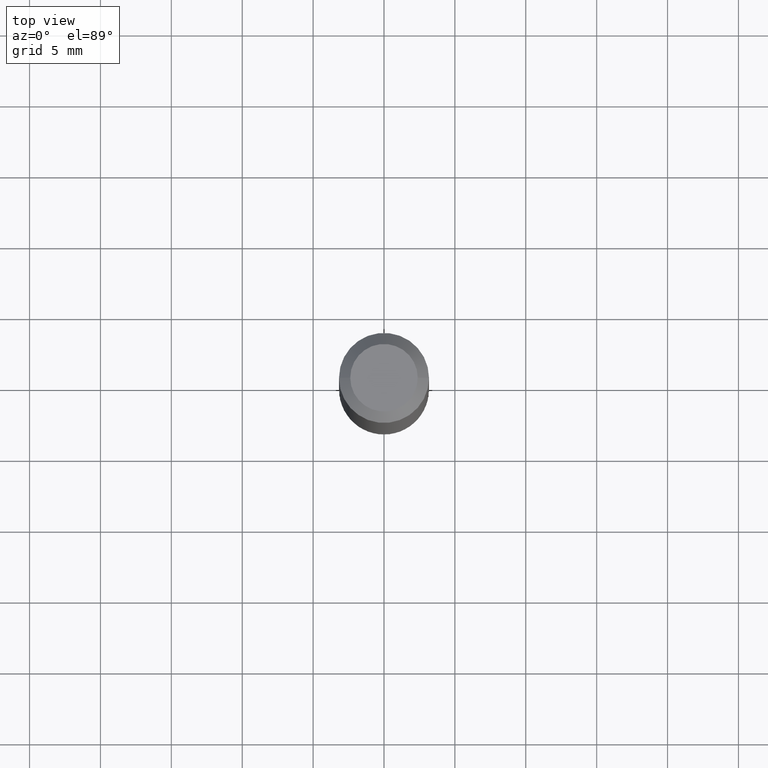
[diagram: clean part render]
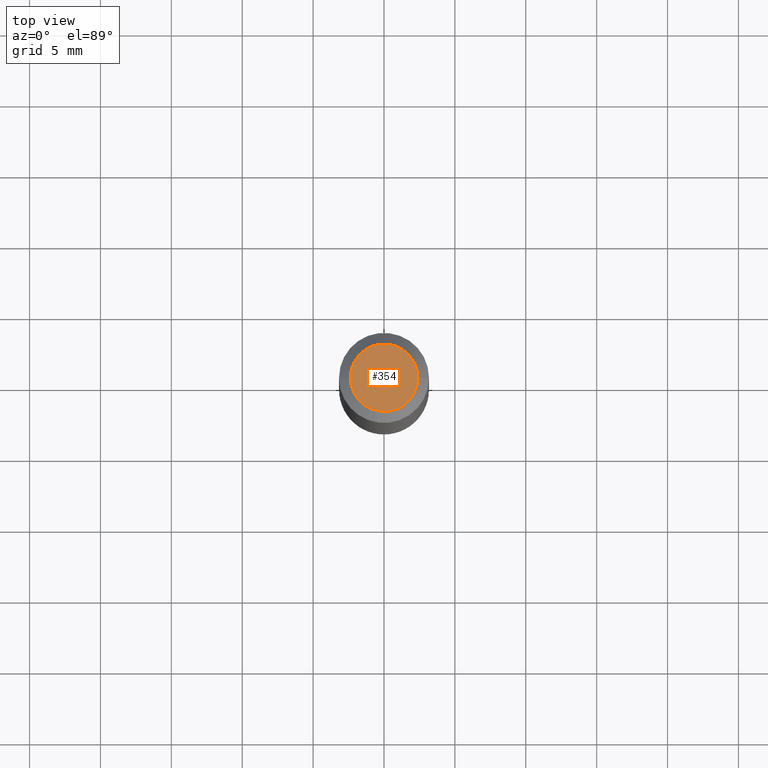
[diagram: same view with one face highlighted and labeled with its STEP entity id]
A machine part, top view. The second image highlights one B-rep face of the part: STEP entity #354.
In plain terms, the highlighted planar face has unit normal (0, -0, -1).
Its self-contained STEP definition (entity closure, byte-faithful):
#25 = CARTESIAN_POINT ( 'NONE',  ( -9.358861080966640236E-47, 1.336197326842803670E-32, 3.827021247335477232E-18 ) ) ;
#32 = CARTESIAN_POINT ( 'NONE',  ( -4.679430540483320118E-47, 6.680986634214018350E-33, 1.913510623667738616E-18 ) ) ;
#57 = EDGE_LOOP ( 'NONE', ( #186, #300 ) ) ;
#87 = VERTEX_POINT ( 'NONE', #307 ) ;
#108 = DIRECTION ( 'NONE',  ( 1.000000000000000000, -6.982962677686266711E-15, 4.875989565238656407E-29 ) ) ;
#126 = DIRECTION ( 'NONE',  ( -2.445468806185136597E-29, 3.491481338843145583E-15, 1.000000000000000000 ) ) ;
#163 = DIRECTION ( 'NONE',  ( 2.438088387897960049E-29, -3.491481338843145188E-15, -1.000000000000000000 ) ) ;
#165 = DIRECTION ( 'NONE',  ( -2.445468806185136597E-29, 3.491481338843145583E-15, 1.000000000000000000 ) ) ;
#186 = ORIENTED_EDGE ( 'NONE', *, *, #384, .T. ) ;
#194 = FACE_OUTER_BOUND ( 'NONE', #57, .T. ) ;
#248 = AXIS2_PLACEMENT_3D ( 'NONE', #25, #126, #256 ) ;
#256 = DIRECTION ( 'NONE',  ( 1.000000000000000000, -6.982962677686266711E-15, 4.875989565238656407E-29 ) ) ;
#270 = CIRCLE ( 'NONE', #248, 0.09374999999999998612 ) ;
#290 = DIRECTION ( 'NONE',  ( -1.000000000000000000, 6.982962677686265922E-15, -4.876176775795935793E-29 ) ) ;
#291 = EDGE_CURVE ( 'NONE', #87, #304, #270, .T. ) ;
#293 = CARTESIAN_POINT ( 'NONE',  ( -9.358861080966640236E-47, 1.336197326842803670E-32, 3.827021247335477232E-18 ) ) ;
#300 = ORIENTED_EDGE ( 'NONE', *, *, #291, .T. ) ;
#304 = VERTEX_POINT ( 'NONE', #394 ) ;
#307 = CARTESIAN_POINT ( 'NONE',  ( 0.09374999999999998612, -8.049213644256858150E-16, 3.827021247340580176E-18 ) ) ;
#321 = AXIS2_PLACEMENT_3D ( 'NONE', #293, #165, #108 ) ;
#324 = PLANE ( 'NONE',  #410 ) ;
#350 = CIRCLE ( 'NONE', #321, 0.09374999999999998612 ) ;
#354 = ADVANCED_FACE ( 'NONE', ( #194 ), #324, .F. ) ;
#384 = EDGE_CURVE ( 'NONE', #304, #87, #350, .T. ) ;
#394 = CARTESIAN_POINT ( 'NONE',  ( -0.09374999999999998612, 7.092071469525108711E-16, 3.827021247330707859E-18 ) ) ;
#410 = AXIS2_PLACEMENT_3D ( 'NONE', #32, #163, #290 ) ;